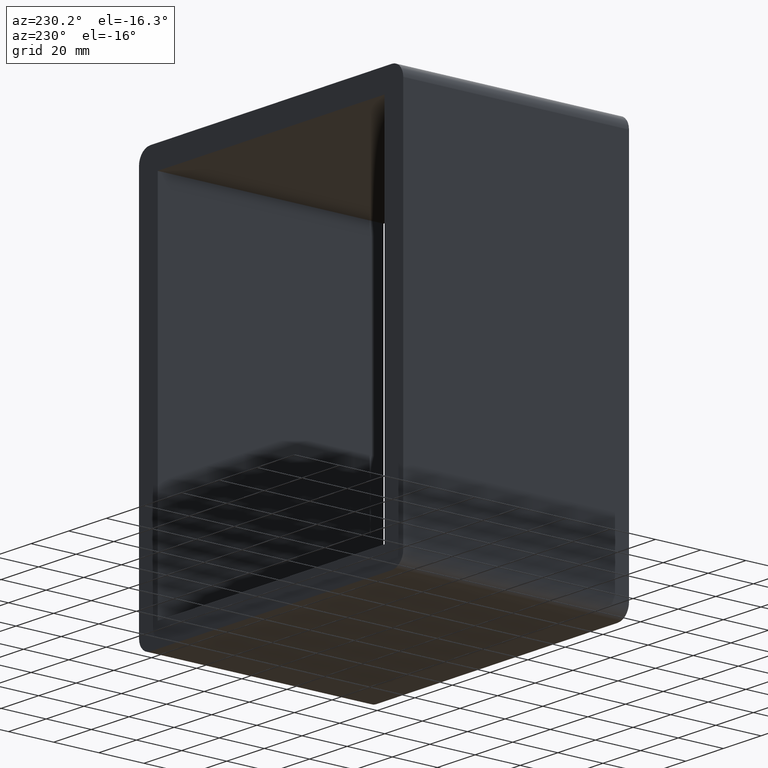
[diagram: clean part render]
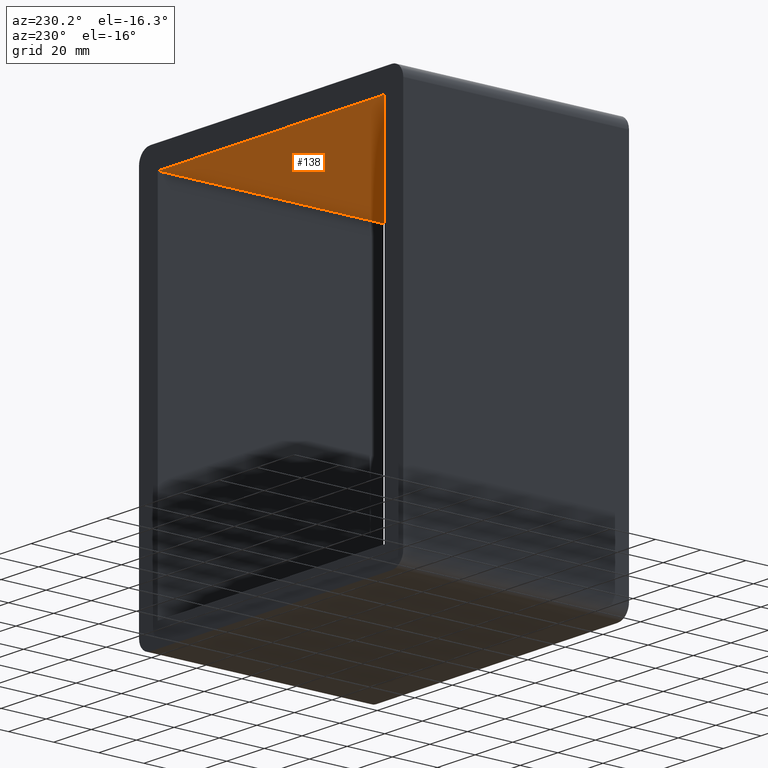
[diagram: same view with one face highlighted and labeled with its STEP entity id]
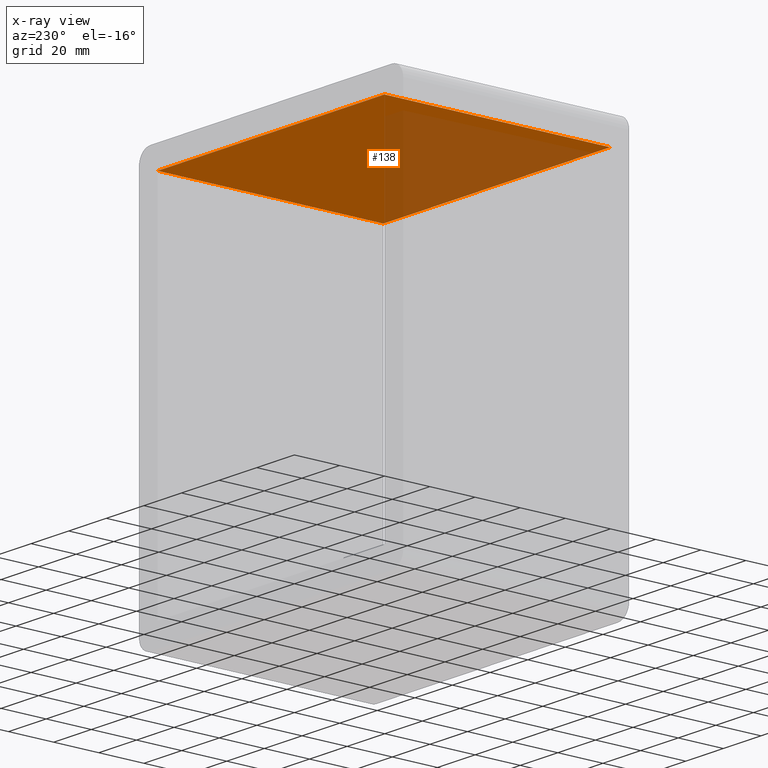
[diagram: x-ray of the same camera — body ghosted, the highlighted face saturated]
A machine part, auxiliary view. The second image highlights one B-rep face of the part: STEP entity #138.
The next image is the same camera in x-ray: the body ghosted, the highlighted face saturated — about 41% of this face is hidden behind the body in this view.
In plain terms, the highlighted planar face has unit normal (0, 0, 1).
Its self-contained STEP definition (entity closure, byte-faithful):
#83=CARTESIAN_POINT('',(60.250000000000021,-3.0,79.750000000000014));
#84=VERTEX_POINT('',#83);
#91=CARTESIAN_POINT('',(60.250000000000021,97.0,79.750000000000014));
#92=VERTEX_POINT('',#91);
#93=CARTESIAN_POINT('',(60.250000000000021,-3.0,79.750000000000014));
#94=DIRECTION('',(0.0,1.0,0.0));
#95=VECTOR('',#94,100.0);
#96=LINE('',#93,#95);
#97=EDGE_CURVE('',#84,#92,#96,.T.);
#108=CARTESIAN_POINT('',(-60.25,0.0,79.750000000000014));
#109=DIRECTION('',(0.0,0.0,1.0));
#110=DIRECTION('',(1.0,0.0,0.0));
#111=AXIS2_PLACEMENT_3D('',#108,#109,#110);
#112=PLANE('',#111);
#113=ORIENTED_EDGE('',*,*,#97,.F.);
#114=CARTESIAN_POINT('',(-60.25,-3.0,79.750000000000014));
#115=VERTEX_POINT('',#114);
#116=CARTESIAN_POINT('',(-60.25,-3.0,79.750000000000014));
#117=DIRECTION('',(1.0,0.0,0.0));
#118=VECTOR('',#117,120.50000000000001);
#119=LINE('',#116,#118);
#120=EDGE_CURVE('',#115,#84,#119,.T.);
#121=ORIENTED_EDGE('',*,*,#120,.F.);
#122=CARTESIAN_POINT('',(-60.25,97.0,79.750000000000014));
#123=VERTEX_POINT('',#122);
#124=CARTESIAN_POINT('',(-60.25,-3.0,79.750000000000014));
#125=DIRECTION('',(0.0,1.0,0.0));
#126=VECTOR('',#125,100.0);
#127=LINE('',#124,#126);
#128=EDGE_CURVE('',#115,#123,#127,.T.);
#129=ORIENTED_EDGE('',*,*,#128,.T.);
#130=CARTESIAN_POINT('',(60.250000000000014,97.0,79.750000000000014));
#131=DIRECTION('',(-1.0,0.0,0.0));
#132=VECTOR('',#131,120.50000000000001);
#133=LINE('',#130,#132);
#134=EDGE_CURVE('',#92,#123,#133,.T.);
#135=ORIENTED_EDGE('',*,*,#134,.F.);
#136=EDGE_LOOP('',(#113,#121,#129,#135));
#137=FACE_OUTER_BOUND('',#136,.T.);
#138=ADVANCED_FACE('',(#137),#112,.F.);